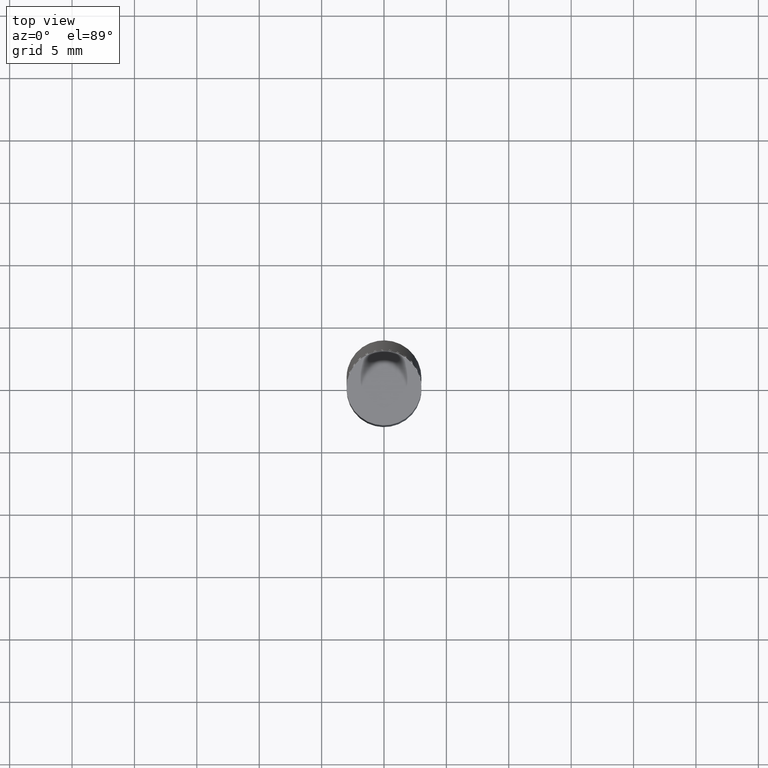
[diagram: clean part render]
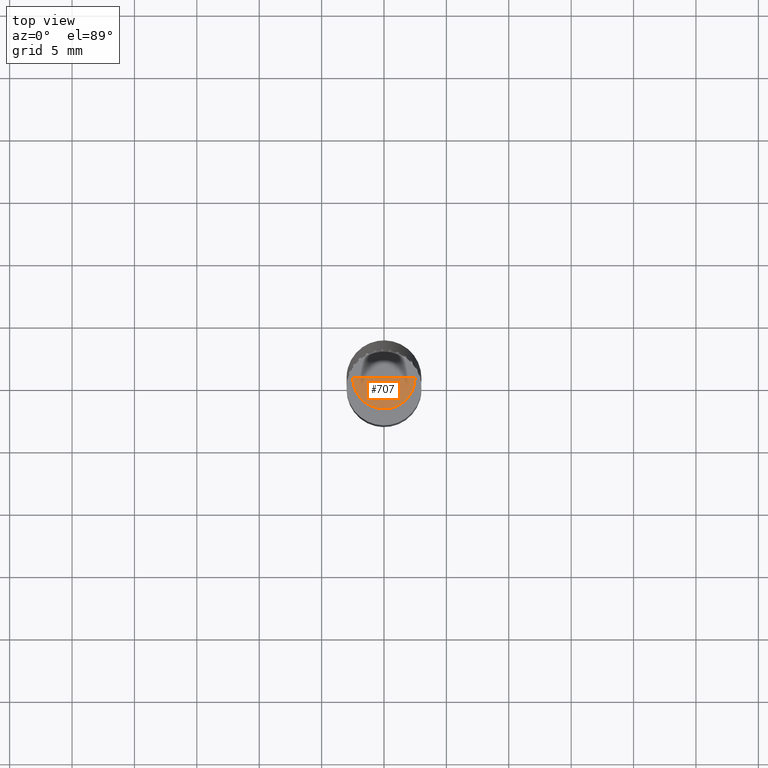
[diagram: same view with one face highlighted and labeled with its STEP entity id]
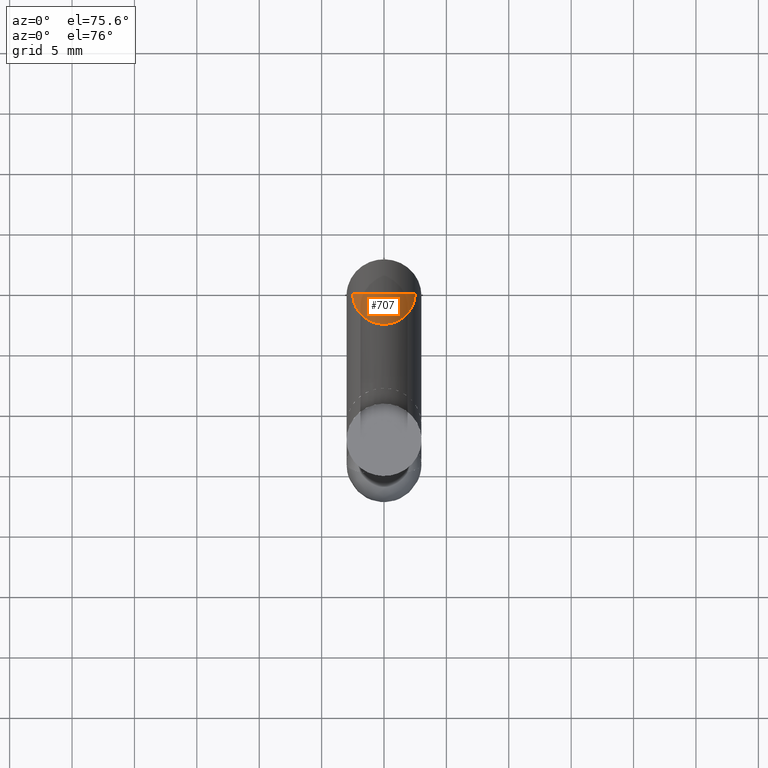
[diagram: same view with one face highlighted and labeled with its STEP entity id]
A machine part, top view. The second image highlights one B-rep face of the part: STEP entity #707.
A second angle (auxiliary view) of the same face is appended — the face is thin or edge-on in the first view.
In plain terms, the highlighted face is a freeform B-spline surface patch.
Its self-contained STEP definition (entity closure, byte-faithful):
#396=CARTESIAN_POINT('',(2.5,0.0,42.0));
#400=CARTESIAN_POINT('',(-2.5,0.0,42.0));
#401=CARTESIAN_POINT('',(0.0,0.0,42.0));
#408=CARTESIAN_POINT('',(-2.5,-2.5,42.0));
#409=CARTESIAN_POINT('',(0.0,-2.5,42.0));
#410=CARTESIAN_POINT('',(2.5,-2.5,42.0));
#692=(
BOUNDED_SURFACE()
B_SPLINE_SURFACE(1,2,(
(#400,#408,#409,#410,#396),
(#401,#401,#401,#401,#401)
), .UNSPECIFIED.,.F.,.F.,.F.)
B_SPLINE_SURFACE_WITH_KNOTS((2,2),(3,2,3),(
0.0,1.0),(
0.0,0.5,1.0), .UNSPECIFIED.)
GEOMETRIC_REPRESENTATION_ITEM()
RATIONAL_B_SPLINE_SURFACE(((1.0,0.707106781187,1.0,0.707106781187,1.0),
(1.0,0.707106781187,1.0,0.707106781187,1.0)
))
REPRESENTATION_ITEM('')
SURFACE()
);
#693=(
BOUNDED_CURVE()
B_SPLINE_CURVE(2,(#396,#410,#409,#408,#400),.UNSPECIFIED.,.F.,.F.)
B_SPLINE_CURVE_WITH_KNOTS((3,2,3),
(0.0,0.5,1.0),.UNSPECIFIED.)
CURVE()
GEOMETRIC_REPRESENTATION_ITEM()
RATIONAL_B_SPLINE_CURVE((1.0,0.707106781187,1.0,0.707106781187,1.0))
REPRESENTATION_ITEM('')
);
#694=(
BOUNDED_CURVE()
B_SPLINE_CURVE(1,(#400,#401),.UNSPECIFIED.,.F.,.F.)
B_SPLINE_CURVE_WITH_KNOTS((2,2),
(0.0,1.0),.UNSPECIFIED.)
CURVE()
GEOMETRIC_REPRESENTATION_ITEM()
RATIONAL_B_SPLINE_CURVE((1.0,1.0))
REPRESENTATION_ITEM('')
);
#695=(
BOUNDED_CURVE()
B_SPLINE_CURVE(1,(#401,#396),.UNSPECIFIED.,.F.,.F.)
B_SPLINE_CURVE_WITH_KNOTS((2,2),
(0.0,1.0),.UNSPECIFIED.)
CURVE()
GEOMETRIC_REPRESENTATION_ITEM()
RATIONAL_B_SPLINE_CURVE((1.0,1.0))
REPRESENTATION_ITEM('')
);
#696=VERTEX_POINT('',#396);
#697=VERTEX_POINT('',#400);
#698=VERTEX_POINT('',#401);
#699=EDGE_CURVE('',#696,#697,#693,.T.);
#700=EDGE_CURVE('',#697,#698,#694,.T.);
#701=EDGE_CURVE('',#698,#696,#695,.T.);
#702=ORIENTED_EDGE('',*,*,#699,.T.);
#703=ORIENTED_EDGE('',*,*,#700,.T.);
#704=ORIENTED_EDGE('',*,*,#701,.T.);
#705=EDGE_LOOP('',(#702,#703,#704));
#706=FACE_OUTER_BOUND('',#705,.T.);
#707=ADVANCED_FACE('',(#706),#692,.T.);